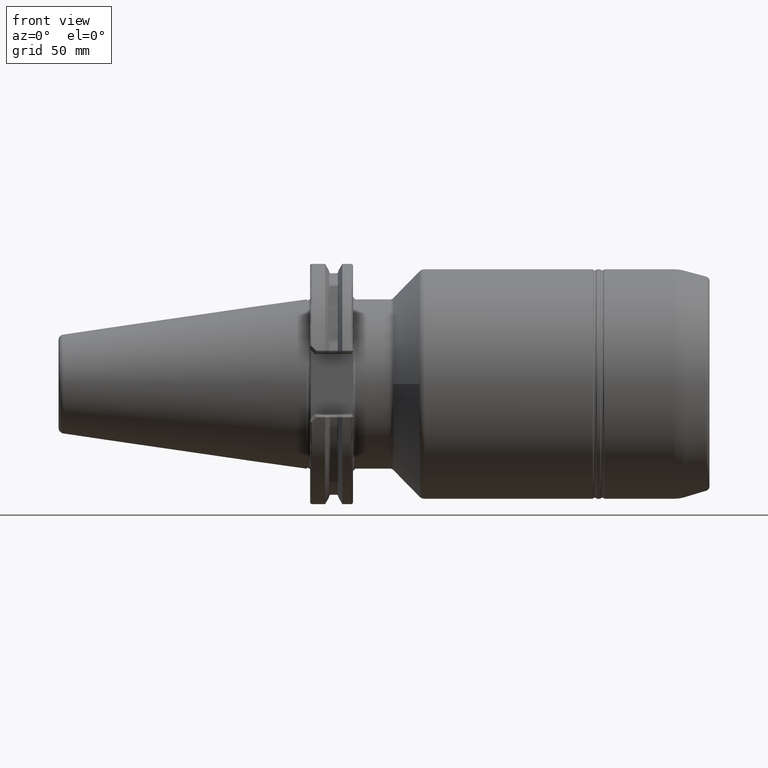
[diagram: clean part render]
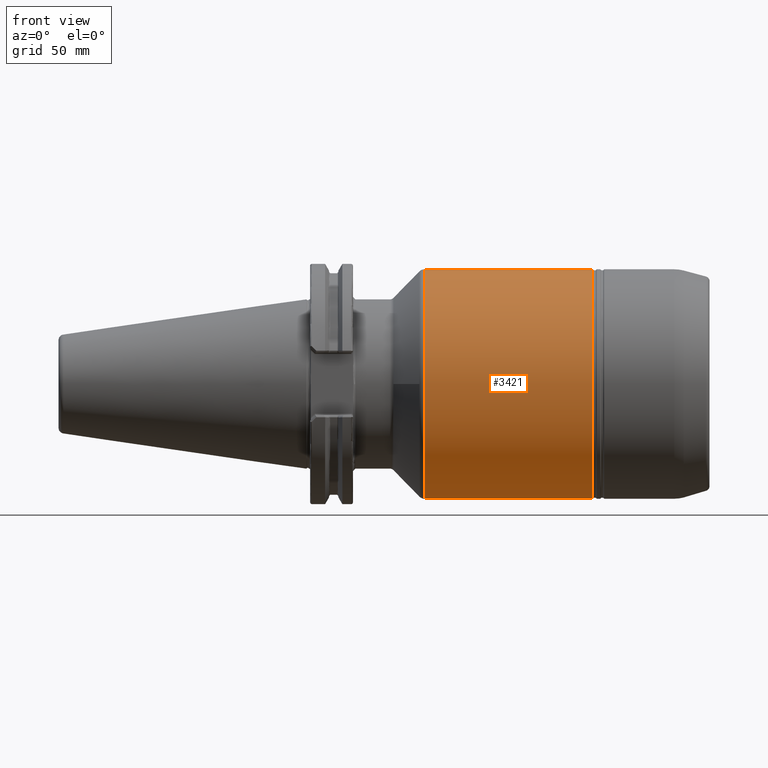
[diagram: same view with one face highlighted and labeled with its STEP entity id]
A machine part, front view. The second image highlights one B-rep face of the part: STEP entity #3421.
In plain terms, the highlighted cylindrical surface (bore or boss wall) has radius 47 mm, axis along (-1, -0, -0).
Its self-contained STEP definition (entity closure, byte-faithful):
#123 = DIRECTION ( 'NONE',  ( 0.0000000000000000000, 0.0000000000000000000, 1.000000000000000000 ) ) ;
#399 = EDGE_LOOP ( 'NONE', ( #1540 ) ) ;
#403 = CARTESIAN_POINT ( 'NONE',  ( 149.9676406871244000, 0.0000000000000000000, 0.0000000000000000000 ) ) ;
#434 = CARTESIAN_POINT ( 'NONE',  ( 0.0000000000000000000, 0.0000000000000000000, 0.0000000000000000000 ) ) ;
#444 = EDGE_CURVE ( 'NONE', #819, #819, #1763, .T. ) ;
#476 = CARTESIAN_POINT ( 'NONE',  ( 149.9676406871244000, 0.0000000000000000000, 47.00000000000540700 ) ) ;
#819 = VERTEX_POINT ( 'NONE', #3492 ) ;
#983 = DIRECTION ( 'NONE',  ( -1.000000000000000000, -0.0000000000000000000, -0.0000000000000000000 ) ) ;
#1213 = CIRCLE ( 'NONE', #2959, 47.00000000000540700 ) ;
#1372 = CARTESIAN_POINT ( 'NONE',  ( 218.9500000000120400, 0.0000000000000000000, 0.0000000000000000000 ) ) ;
#1540 = ORIENTED_EDGE ( 'NONE', *, *, #3820, .F. ) ;
#1763 = CIRCLE ( 'NONE', #2640, 47.00000000000541400 ) ;
#2256 = DIRECTION ( 'NONE',  ( -1.000000000000000000, -0.0000000000000000000, -0.0000000000000000000 ) ) ;
#2634 = FACE_OUTER_BOUND ( 'NONE', #399, .T. ) ;
#2640 = AXIS2_PLACEMENT_3D ( 'NONE', #1372, #3475, #123 ) ;
#2853 = DIRECTION ( 'NONE',  ( 0.0000000000000000000, 0.0000000000000000000, 1.000000000000000000 ) ) ;
#2906 = EDGE_LOOP ( 'NONE', ( #3750 ) ) ;
#2959 = AXIS2_PLACEMENT_3D ( 'NONE', #403, #2256, #2853 ) ;
#3209 = AXIS2_PLACEMENT_3D ( 'NONE', #434, #983, #3745 ) ;
#3337 = FACE_OUTER_BOUND ( 'NONE', #2906, .T. ) ;
#3421 = ADVANCED_FACE ( 'NONE', ( #2634, #3337 ), #3884, .T. ) ;
#3475 = DIRECTION ( 'NONE',  ( -1.000000000000000000, -0.0000000000000000000, -0.0000000000000000000 ) ) ;
#3492 = CARTESIAN_POINT ( 'NONE',  ( 218.9500000000120400, 0.0000000000000000000, 47.00000000000541400 ) ) ;
#3626 = VERTEX_POINT ( 'NONE', #476 ) ;
#3745 = DIRECTION ( 'NONE',  ( 0.0000000000000000000, 0.0000000000000000000, 1.000000000000000000 ) ) ;
#3750 = ORIENTED_EDGE ( 'NONE', *, *, #444, .T. ) ;
#3820 = EDGE_CURVE ( 'NONE', #3626, #3626, #1213, .T. ) ;
#3884 = CYLINDRICAL_SURFACE ( 'NONE', #3209, 47.00000000000541400 ) ;